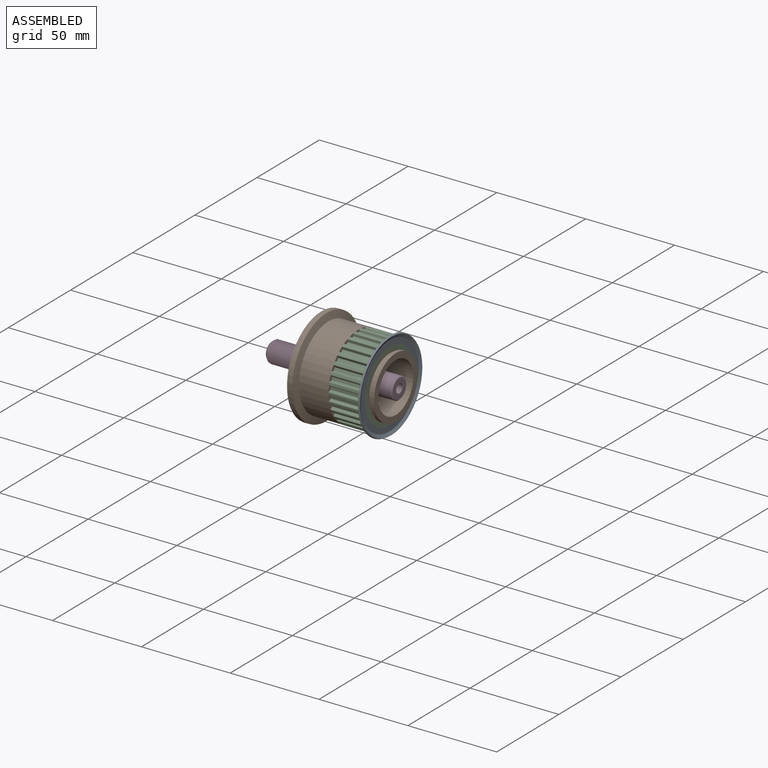
[diagram: assembled view]
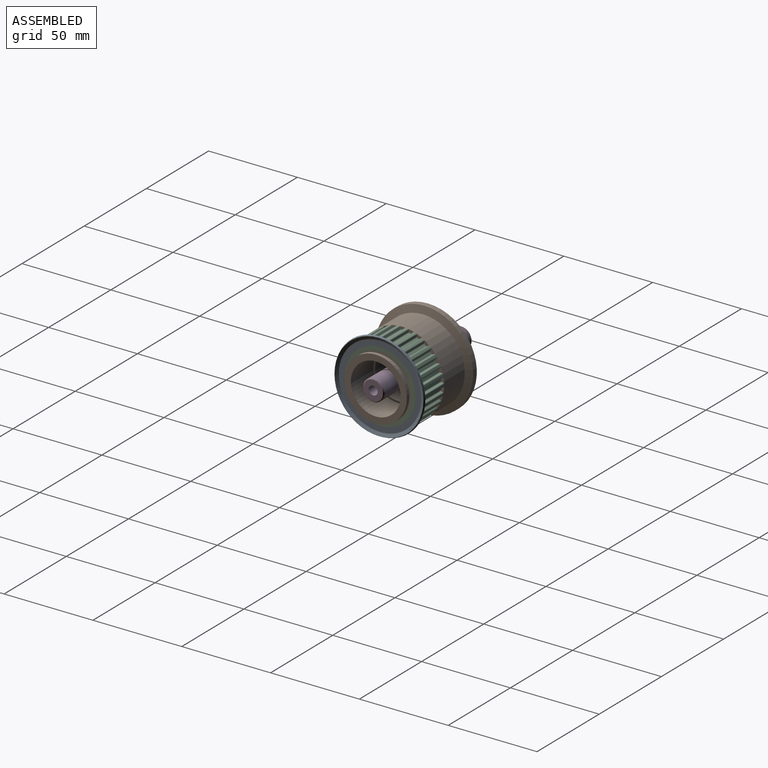
[diagram: assembled view, second angle]
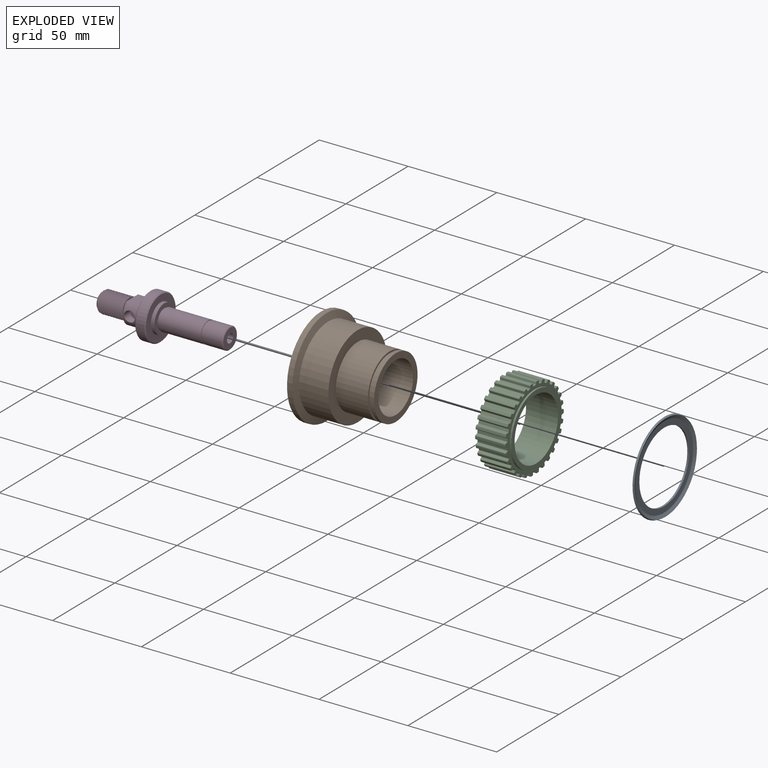
[diagram: exploded view]
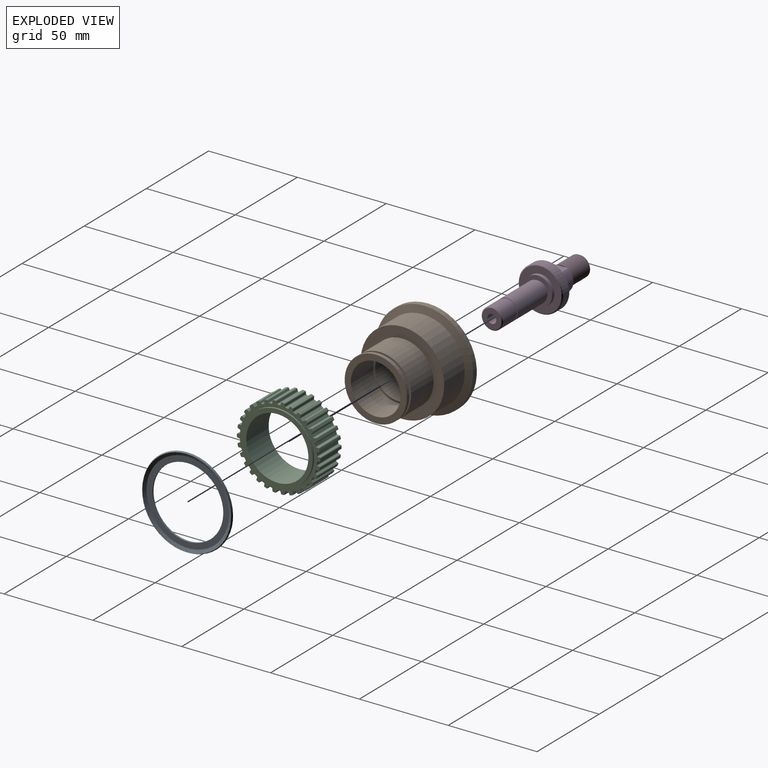
[diagram: exploded view, second angle]
ASSEMBLY  parts=4 mates=3
PART A: 6 faces, bbox 1.9x51x51 mm
  f0: plane 47x47mm, normal (-1,0,0), area 478.3mm2, adj f1,f5
  f1: cylinder r=20mm len=40mm, axis (-1,0,0), area 125.7mm2, adj f0,f2
  f2: plane 46.53x46.53mm, normal (1,0,0), area 443.6mm2, adj f1,f3
  f3: cone r=23.26mm half-angle=63.4deg, axis (1,0,0), area 303.6mm2, adj f2,f4
  f4: cone r=25.05mm half-angle=26.6deg, axis (-1,0,0), area 158.8mm2, adj f3,f5
  f5: cone r=25.5mm half-angle=63.4deg, axis (1,0,0), area 344.2mm2, adj f0,f4
PART B: 16 faces, bbox 42x55x55 mm
  f0: plane 47x47mm, normal (1,0,0), area 772.8mm2, adj f1,f15
  f1: cylinder r=23.5mm len=47mm, axis (-1,0,0), area 2436.3mm2, adj f0,f2
  f2: cone r=27.5mm half-angle=76deg, axis (-1,0,0), area 660.6mm2, adj f1,f3
  f3: cylinder r=27.5mm len=55mm, axis (-1,0,0), area 518.4mm2, adj f2,f4
  f4: plane 55x55mm, normal (-1,0,0), area 1760.1mm2, adj f3,f5
  f5: cylinder r=14mm len=28mm, axis (-1,0,0), area 1319.5mm2, adj f4,f6
  f6: plane 28x28mm, normal (-1,0,0), area 84.8mm2, adj f5,f7
  f7: cylinder r=13mm len=26mm, axis (-1,0,0), area 735.1mm2, adj f6,f8
  f8: plane 28x28mm, normal (1,0,0), area 84.8mm2, adj f7,f9
  f9: cylinder r=14mm len=28mm, axis (-1,0,0), area 1583.4mm2, adj f8,f10
  f10: plane 35x35mm, normal (1,0,0), area 346.4mm2, adj f9,f11
  f11: cylinder r=17.5mm len=35mm, axis (-1,0,0), area 219.9mm2, adj f10,f12
  f12: plane 35x35mm, normal (-1,0,0), area 112mm2, adj f11,f13
  f13: cylinder r=16.45mm len=32.9mm, axis (-1,0,0), area 155mm2, adj f12,f14
  f14: plane 35x35mm, normal (1,0,0), area 112mm2, adj f13,f15
  f15: cylinder r=17.5mm len=35mm, axis (-1,0,0), area 1979.2mm2, adj f0,f14
PART C: 245 faces, bbox 18x47x46.9 mm
  f0: cylinder r=21.75mm len=17mm, axis (-1,0,0), area 20.6mm2, adj f179,f180,f242,f244
  f1: plane 17x0.98mm, normal (0,-0.05,-1), area 16.6mm2, adj f180,f193,f242,f244
  f2: cylinder r=23.5mm len=17mm, axis (-1,0,0), area 19.8mm2, adj f193,f194,f242,f244
  f3: plane 17x0.91mm, normal (0,0.36,0.93), area 16.6mm2, adj f121,f194,f242,f244
  f4: cylinder r=21.75mm len=17mm, axis (-1,0,0), area 20.6mm2, adj f121,f122,f242,f244
  f5: plane 17x0.97mm, normal (0,0.16,-0.99), area 16.6mm2, adj f122,f196,f242,f244
  f6: cylinder r=23.5mm len=17mm, axis (-1,0,0), area 19.8mm2, adj f195,f196,f242,f244
  f7: plane 17x0.97mm, normal (0,0.16,0.99), area 16.6mm2, adj f123,f195,f242,f244
  f8: cylinder r=21.75mm len=17mm, axis (-1,0,0), area 20.6mm2, adj f123,f124,f242,f244
  f9: plane 17x0.91mm, normal (0,0.36,-0.93), area 16.6mm2, adj f124,f197,f242,f244
  f10: cylinder r=23.5mm len=17mm, axis (-1,0,0), area 19.8mm2, adj f197,f198,f242,f244
  f11: plane 17x0.98mm, normal (0,-0.05,1), area 16.6mm2, adj f125,f198,f242,f244
  f12: cylinder r=21.75mm len=17mm, axis (-1,0,0), area 20.6mm2, adj f125,f126,f242,f244
  f13: plane 17x0.82mm, normal (0,0.54,-0.84), area 16.6mm2, adj f126,f199,f242,f244
  f14: cylinder r=23.5mm len=17mm, axis (-1,0,0), area 19.8mm2, adj f199,f200,f242,f244
  f15: plane 17x0.94mm, normal (0,-0.26,0.97), area 16.6mm2, adj f127,f200,f242,f244
  f16: cylinder r=21.75mm len=17mm, axis (-1,0,0), area 20.6mm2, adj f127,f128,f242,f244
  f17: plane 17x0.69mm, normal (0,0.71,-0.71), area 16.6mm2, adj f128,f201,f242,f244
  f18: cylinder r=23.5mm len=17mm, axis (-1,0,0), area 19.8mm2, adj f201,f202,f242,f244
  f19: plane 17x0.87mm, normal (0,-0.45,0.89), area 16.6mm2, adj f129,f202,f242,f244
  f20: cylinder r=21.75mm len=17mm, axis (-1,0,0), area 20.6mm2, adj f129,f130,f242,f244
  f21: plane 17x0.82mm, normal (0,0.84,-0.54), area 16.6mm2, adj f130,f203,f242,f244
  f22: cylinder r=23.5mm len=17mm, axis (-1,0,0), area 19.8mm2, adj f203,f204,f242,f244
  f23: plane 17x0.76mm, normal (0,-0.63,0.78), area 16.6mm2, adj f131,f204,f242,f244
  f24: cylinder r=21.75mm len=17mm, axis (-1,0,0), area 20.6mm2, adj f131,f132,f242,f244
  f25: plane 17x0.91mm, normal (0,0.93,-0.36), area 16.6mm2, adj f132,f205,f242,f244
  f26: cylinder r=23.5mm len=17mm, axis (-1,0,0), area 19.8mm2, adj f205,f206,f242,f244
  f27: plane 17x0.76mm, normal (0,-0.78,0.63), area 16.6mm2, adj f133,f206,f242,f244
  f28: cylinder r=21.75mm len=17mm, axis (-1,0,0), area 20.6mm2, adj f133,f134,f242,f244
  f29: plane 17x0.97mm, normal (0,0.99,-0.16), area 16.6mm2, adj f134,f207,f242,f244
  f30: cylinder r=23.5mm len=17mm, axis (-1,0,0), area 19.8mm2, adj f207,f208,f242,f244
  f31: plane 17x0.87mm, normal (0,-0.89,0.45), area 16.6mm2, adj f135,f208,f242,f244
  f32: cylinder r=21.75mm len=17mm, axis (-1,0,0), area 20.6mm2, adj f135,f136,f242,f244
  f33: plane 17x0.98mm, normal (0,1,0.05), area 16.6mm2, adj f136,f210,f242,f244
  f34: cylinder r=23.5mm len=17mm, axis (-1,0,0), area 19.8mm2, adj f209,f210,f242,f244
  f35: plane 17x0.94mm, normal (0,-0.97,0.26), area 16.6mm2, adj f137,f209,f242,f244
  f36: cylinder r=21.75mm len=17mm, axis (-1,0,0), area 20.6mm2, adj f137,f138,f242,f244
  f37: plane 17x0.94mm, normal (0,0.97,0.26), area 16.6mm2, adj f138,f211,f242,f244
  f38: cylinder r=23.5mm len=17mm, axis (-1,0,0), area 19.8mm2, adj f211,f212,f242,f244
  f39: plane 17x0.98mm, normal (0,-1,0.05), area 16.6mm2, adj f139,f212,f242,f244
  f40: cylinder r=21.75mm len=17mm, axis (-1,0,0), area 20.6mm2, adj f139,f140,f242,f244
  f41: plane 17x0.87mm, normal (0,0.89,0.45), area 16.6mm2, adj f140,f213,f242,f244
  f42: cylinder r=23.5mm len=17mm, axis (-1,0,0), area 19.8mm2, adj f213,f214,f242,f244
  f43: plane 17x0.97mm, normal (0,-0.99,-0.16), area 16.6mm2, adj f141,f214,f242,f244
  f44: cylinder r=21.75mm len=17mm, axis (-1,0,0), area 20.6mm2, adj f141,f142,f242,f244
  f45: plane 17x0.76mm, normal (0,0.78,0.63), area 16.6mm2, adj f142,f215,f242,f244
  f46: cylinder r=23.5mm len=17mm, axis (-1,0,0), area 19.8mm2, adj f215,f216,f242,f244
  f47: plane 17x0.91mm, normal (0,-0.93,-0.36), area 16.6mm2, adj f143,f216,f242,f244
  f48: cylinder r=21.75mm len=17mm, axis (-1,0,0), area 20.6mm2, adj f143,f144,f242,f244
  f49: plane 17x0.76mm, normal (0,0.63,0.78), area 16.6mm2, adj f144,f217,f242,f244
  f50: cylinder r=23.5mm len=17mm, axis (-1,0,0), area 19.8mm2, adj f217,f218,f242,f244
  f51: plane 17x0.82mm, normal (0,-0.84,-0.54), area 16.6mm2, adj f145,f218,f242,f244
  f52: cylinder r=21.75mm len=17mm, axis (-1,0,0), area 20.6mm2, adj f145,f146,f242,f244
  f53: plane 17x0.87mm, normal (0,0.45,0.89), area 16.6mm2, adj f146,f219,f242,f244
  f54: cylinder r=23.5mm len=17mm, axis (-1,0,0), area 19.8mm2, adj f219,f220,f242,f244
  f55: plane 17x0.69mm, normal (0,-0.71,-0.71), area 16.6mm2, adj f147,f220,f242,f244
  f56: cylinder r=21.75mm len=17mm, axis (-1,0,0), area 20.6mm2, adj f147,f148,f242,f244
  f57: plane 17x0.94mm, normal (0,0.26,0.97), area 16.6mm2, adj f148,f221,f242,f244
  f58: cylinder r=23.5mm len=17mm, axis (-1,0,0), area 19.8mm2, adj f221,f222,f242,f244
  f59: plane 17x0.82mm, normal (0,-0.54,-0.84), area 16.6mm2, adj f149,f222,f242,f244
  f60: cylinder r=21.75mm len=17mm, axis (-1,0,0), area 20.6mm2, adj f149,f150,f242,f244
  f61: plane 17x0.98mm, normal (0,0.05,1), area 16.6mm2, adj f150,f223,f242,f244
  f62: cylinder r=23.5mm len=17mm, axis (-1,0,0), area 19.8mm2, adj f223,f224,f242,f244
  f63: plane 17x0.91mm, normal (0,-0.36,-0.93), area 16.6mm2, adj f151,f224,f242,f244
  f64: cylinder r=21.75mm len=17mm, axis (-1,0,0), area 20.6mm2, adj f151,f152,f242,f244
  f65: plane 17x0.97mm, normal (0,-0.16,0.99), area 16.6mm2, adj f152,f225,f242,f244
  f66: cylinder r=23.5mm len=17mm, axis (-1,0,0), area 19.8mm2, adj f225,f226,f242,f244
  f67: plane 17x0.97mm, normal (0,-0.16,-0.99), area 16.6mm2, adj f153,f226,f242,f244
  f68: cylinder r=21.75mm len=17mm, axis (-1,0,0), area 20.6mm2, adj f153,f154,f242,f244
  f69: plane 17x0.91mm, normal (0,-0.36,0.93), area 16.6mm2, adj f154,f227,f242,f244
  f70: cylinder r=23.5mm len=17mm, axis (-1,0,0), area 19.8mm2, adj f227,f228,f242,f244
  f71: plane 17x0.98mm, normal (0,0.05,-1), area 16.6mm2, adj f155,f228,f242,f244
  f72: cylinder r=21.75mm len=17mm, axis (-1,0,0), area 20.6mm2, adj f155,f156,f242,f244
  f73: plane 17x0.82mm, normal (0,-0.54,0.84), area 16.6mm2, adj f156,f229,f242,f244
  f74: cylinder r=23.5mm len=17mm, axis (-1,0,0), area 19.8mm2, adj f229,f230,f242,f244
  f75: plane 17x0.94mm, normal (0,0.26,-0.97), area 16.6mm2, adj f157,f230,f242,f244
  f76: cylinder r=21.75mm len=17mm, axis (-1,0,0), area 20.6mm2, adj f157,f158,f242,f244
  f77: plane 17x0.69mm, normal (0,-0.71,0.71), area 16.6mm2, adj f158,f231,f242,f244
  f78: cylinder r=23.5mm len=17mm, axis (-1,0,0), area 19.8mm2, adj f231,f232,f242,f244
  f79: plane 17x0.87mm, normal (0,0.45,-0.89), area 16.6mm2, adj f159,f232,f242,f244
  f80: cylinder r=21.75mm len=17mm, axis (-1,0,0), area 20.6mm2, adj f159,f160,f242,f244
  f81: plane 17x0.82mm, normal (0,-0.84,0.54), area 16.6mm2, adj f160,f233,f242,f244
  f82: cylinder r=23.5mm len=17mm, axis (-1,0,0), area 19.8mm2, adj f233,f234,f242,f244
  f83: plane 17x0.76mm, normal (0,0.63,-0.78), area 16.6mm2, adj f161,f234,f242,f244
  f84: cylinder r=21.75mm len=17mm, axis (-1,0,0), area 20.6mm2, adj f161,f162,f242,f244
  f85: plane 17x0.91mm, normal (0,-0.93,0.36), area 16.6mm2, adj f162,f235,f242,f244
  f86: cylinder r=23.5mm len=17mm, axis (-1,0,0), area 19.8mm2, adj f235,f236,f242,f244
  f87: plane 17x0.76mm, normal (0,0.78,-0.63), area 16.6mm2, adj f163,f236,f242,f244
  f88: cylinder r=21.75mm len=17mm, axis (-1,0,0), area 20.6mm2, adj f163,f164,f242,f244
  f89: plane 17x0.97mm, normal (0,-0.99,0.16), area 16.6mm2, adj f164,f237,f242,f244
  f90: cylinder r=23.5mm len=17mm, axis (-1,0,0), area 19.8mm2, adj f237,f238,f242,f244
  f91: plane 17x0.87mm, normal (0,0.89,-0.45), area 16.6mm2, adj f165,f238,f242,f244
  f92: cylinder r=21.75mm len=17mm, axis (-1,0,0), area 20.6mm2, adj f165,f166,f242,f244
  f93: plane 17x0.98mm, normal (0,-1,-0.05), area 16.6mm2, adj f166,f239,f242,f244
  f94: cylinder r=23.5mm len=17mm, axis (-1,0,0), area 19.8mm2, adj f239,f240,f242,f244
  f95: plane 17x0.94mm, normal (0,0.97,-0.26), area 16.6mm2, adj f167,f240,f242,f244
  f96: cylinder r=21.75mm len=17mm, axis (-1,0,0), area 20.6mm2, adj f167,f168,f242,f244
  f97: plane 17x0.94mm, normal (0,-0.97,-0.26), area 16.6mm2, adj f168,f181,f242,f244
  f98: cylinder r=23.5mm len=17mm, axis (-1,0,0), area 19.8mm2, adj f181,f182,f242,f244
  f99: plane 17x0.98mm, normal (0,1,-0.05), area 16.6mm2, adj f169,f182,f242,f244
  f100: cylinder r=21.75mm len=17mm, axis (-1,0,0), area 20.6mm2, adj f169,f170,f242,f244
  f101: plane 17x0.87mm, normal (0,-0.89,-0.45), area 16.6mm2, adj f170,f183,f242,f244
  f102: cylinder r=23.5mm len=17mm, axis (-1,0,0), area 19.8mm2, adj f183,f184,f242,f244
  f103: plane 17x0.97mm, normal (0,0.99,0.16), area 16.6mm2, adj f171,f184,f242,f244
  f104: cylinder r=21.75mm len=17mm, axis (-1,0,0), area 20.6mm2, adj f171,f172,f242,f244
  f105: plane 17x0.76mm, normal (0,-0.78,-0.63), area 16.6mm2, adj f172,f185,f242,f244
  f106: cylinder r=23.5mm len=17mm, axis (-1,0,0), area 19.8mm2, adj f185,f186,f242,f244
  f107: plane 17x0.91mm, normal (0,0.93,0.36), area 16.6mm2, adj f173,f186,f242,f244
  f108: cylinder r=21.75mm len=17mm, axis (-1,0,0), area 20.6mm2, adj f173,f174,f242,f244
  f109: plane 17x0.76mm, normal (0,-0.63,-0.78), area 16.6mm2, adj f174,f187,f242,f244
  f110: cylinder r=23.5mm len=17mm, axis (-1,0,0), area 19.8mm2, adj f187,f188,f242,f244
  f111: plane 17x0.82mm, normal (0,0.84,0.54), area 16.6mm2, adj f175,f188,f242,f244
  f112: cylinder r=21.75mm len=17mm, axis (-1,0,0), area 20.6mm2, adj f175,f176,f242,f244
  f113: plane 17x0.87mm, normal (0,-0.45,-0.89), area 16.6mm2, adj f176,f189,f242,f244
  f114: cylinder r=23.5mm len=17mm, axis (-1,0,0), area 19.8mm2, adj f189,f190,f242,f244
  f115: plane 17x0.69mm, normal (0,0.71,0.71), area 16.6mm2, adj f177,f190,f242,f244
  f116: cylinder r=21.75mm len=17mm, axis (-1,0,0), area 20.6mm2, adj f177,f178,f242,f244
  f117: plane 17x0.94mm, normal (0,-0.26,-0.97), area 16.6mm2, adj f178,f191,f242,f244
  f118: cylinder r=23.5mm len=17mm, axis (-1,0,0), area 19.8mm2, adj f191,f192,f242,f244
  f119: plane 17x0.82mm, normal (0,0.54,0.84), area 16.6mm2, adj f179,f192,f242,f244
  f120: plane 40x40mm, normal (1,0,0), area 294.5mm2, adj f241,f243
  f121: cylinder r=0.5mm len=17mm, axis (-1,0,0), area 11.4mm2, adj f3,f4,f242,f244
  f122: cylinder r=0.5mm len=17mm, axis (-1,0,0), area 11.4mm2, adj f4,f5,f242,f244
  f123: cylinder r=0.5mm len=17mm, axis (-1,0,0), area 11.4mm2, adj f7,f8,f242,f244
  f124: cylinder r=0.5mm len=17mm, axis (-1,0,0), area 11.4mm2, adj f8,f9,f242,f244
  f125: cylinder r=0.5mm len=17mm, axis (-1,0,0), area 11.4mm2, adj f11,f12,f242,f244
  f126: cylinder r=0.5mm len=17mm, axis (-1,0,0), area 11.4mm2, adj f12,f13,f242,f244
  f127: cylinder r=0.5mm len=17mm, axis (-1,0,0), area 11.4mm2, adj f15,f16,f242,f244
  f128: cylinder r=0.5mm len=17mm, axis (-1,0,0), area 11.4mm2, adj f16,f17,f242,f244
  f129: cylinder r=0.5mm len=17mm, axis (-1,0,0), area 11.4mm2, adj f19,f20,f242,f244
  f130: cylinder r=0.5mm len=17mm, axis (-1,0,0), area 11.4mm2, adj f20,f21,f242,f244
  f131: cylinder r=0.5mm len=17mm, axis (-1,0,0), area 11.4mm2, adj f23,f24,f242,f244
  f132: cylinder r=0.5mm len=17mm, axis (-1,0,0), area 11.4mm2, adj f24,f25,f242,f244
  f133: cylinder r=0.5mm len=17mm, axis (-1,0,0), area 11.4mm2, adj f27,f28,f242,f244
  f134: cylinder r=0.5mm len=17mm, axis (-1,0,0), area 11.4mm2, adj f28,f29,f242,f244
  f135: cylinder r=0.5mm len=17mm, axis (-1,0,0), area 11.4mm2, adj f31,f32,f242,f244
  f136: cylinder r=0.5mm len=17mm, axis (-1,0,0), area 11.4mm2, adj f32,f33,f242,f244
  f137: cylinder r=0.5mm len=17mm, axis (-1,0,0), area 11.4mm2, adj f35,f36,f242,f244
  f138: cylinder r=0.5mm len=17mm, axis (-1,0,0), area 11.4mm2, adj f36,f37,f242,f244
  f139: cylinder r=0.5mm len=17mm, axis (-1,0,0), area 11.4mm2, adj f39,f40,f242,f244
  f140: cylinder r=0.5mm len=17mm, axis (-1,0,0), area 11.4mm2, adj f40,f41,f242,f244
  f141: cylinder r=0.5mm len=17mm, axis (-1,0,0), area 11.4mm2, adj f43,f44,f242,f244
  f142: cylinder r=0.5mm len=17mm, axis (-1,0,0), area 11.4mm2, adj f44,f45,f242,f244
  f143: cylinder r=0.5mm len=17mm, axis (-1,0,0), area 11.4mm2, adj f47,f48,f242,f244
  f144: cylinder r=0.5mm len=17mm, axis (-1,0,0), area 11.4mm2, adj f48,f49,f242,f244
  f145: cylinder r=0.5mm len=17mm, axis (-1,0,0), area 11.4mm2, adj f51,f52,f242,f244
  f146: cylinder r=0.5mm len=17mm, axis (-1,0,0), area 11.4mm2, adj f52,f53,f242,f244
  f147: cylinder r=0.5mm len=17mm, axis (-1,0,0), area 11.4mm2, adj f55,f56,f242,f244
  f148: cylinder r=0.5mm len=17mm, axis (-1,0,0), area 11.4mm2, adj f56,f57,f242,f244
  f149: cylinder r=0.5mm len=17mm, axis (-1,0,0), area 11.4mm2, adj f59,f60,f242,f244
  f150: cylinder r=0.5mm len=17mm, axis (-1,0,0), area 11.4mm2, adj f60,f61,f242,f244
  f151: cylinder r=0.5mm len=17mm, axis (-1,0,0), area 11.4mm2, adj f63,f64,f242,f244
  f152: cylinder r=0.5mm len=17mm, axis (-1,0,0), area 11.4mm2, adj f64,f65,f242,f244
  f153: cylinder r=0.5mm len=17mm, axis (-1,0,0), area 11.4mm2, adj f67,f68,f242,f244
  f154: cylinder r=0.5mm len=17mm, axis (-1,0,0), area 11.4mm2, adj f68,f69,f242,f244
  f155: cylinder r=0.5mm len=17mm, axis (-1,0,0), area 11.4mm2, adj f71,f72,f242,f244
  f156: cylinder r=0.5mm len=17mm, axis (-1,0,0), area 11.4mm2, adj f72,f73,f242,f244
  f157: cylinder r=0.5mm len=17mm, axis (-1,0,0), area 11.4mm2, adj f75,f76,f242,f244
  f158: cylinder r=0.5mm len=17mm, axis (-1,0,0), area 11.4mm2, adj f76,f77,f242,f244
  f159: cylinder r=0.5mm len=17mm, axis (-1,0,0), area 11.4mm2, adj f79,f80,f242,f244
  f160: cylinder r=0.5mm len=17mm, axis (-1,0,0), area 11.4mm2, adj f80,f81,f242,f244
  f161: cylinder r=0.5mm len=17mm, axis (-1,0,0), area 11.4mm2, adj f83,f84,f242,f244
  f162: cylinder r=0.5mm len=17mm, axis (-1,0,0), area 11.4mm2, adj f84,f85,f242,f244
  f163: cylinder r=0.5mm len=17mm, axis (-1,0,0), area 11.4mm2, adj f87,f88,f242,f244
  f164: cylinder r=0.5mm len=17mm, axis (-1,0,0), area 11.4mm2, adj f88,f89,f242,f244
  f165: cylinder r=0.5mm len=17mm, axis (-1,0,0), area 11.4mm2, adj f91,f92,f242,f244
  f166: cylinder r=0.5mm len=17mm, axis (-1,0,0), area 11.4mm2, adj f92,f93,f242,f244
  f167: cylinder r=0.5mm len=17mm, axis (-1,0,0), area 11.4mm2, adj f95,f96,f242,f244
  f168: cylinder r=0.5mm len=17mm, axis (-1,0,0), area 11.4mm2, adj f96,f97,f242,f244
  f169: cylinder r=0.5mm len=17mm, axis (-1,0,0), area 11.4mm2, adj f99,f100,f242,f244
  f170: cylinder r=0.5mm len=17mm, axis (-1,0,0), area 11.4mm2, adj f100,f101,f242,f244
  f171: cylinder r=0.5mm len=17mm, axis (-1,0,0), area 11.4mm2, adj f103,f104,f242,f244
  f172: cylinder r=0.5mm len=17mm, axis (-1,0,0), area 11.4mm2, adj f104,f105,f242,f244
  f173: cylinder r=0.5mm len=17mm, axis (-1,0,0), area 11.4mm2, adj f107,f108,f242,f244
  f174: cylinder r=0.5mm len=17mm, axis (-1,0,0), area 11.4mm2, adj f108,f109,f242,f244
  f175: cylinder r=0.5mm len=17mm, axis (-1,0,0), area 11.4mm2, adj f111,f112,f242,f244
  f176: cylinder r=0.5mm len=17mm, axis (-1,0,0), area 11.4mm2, adj f112,f113,f242,f244
  f177: cylinder r=0.5mm len=17mm, axis (-1,0,0), area 11.4mm2, adj f115,f116,f242,f244
  f178: cylinder r=0.5mm len=17mm, axis (-1,0,0), area 11.4mm2, adj f116,f117,f242,f244
  f179: cylinder r=0.5mm len=17mm, axis (-1,0,0), area 11.4mm2, adj f0,f119,f242,f244
  f180: cylinder r=0.5mm len=17mm, axis (-1,0,0), area 11.4mm2, adj f0,f1,f242,f244
  f181: cylinder r=0.5mm len=17mm, axis (-1,0,0), area 11.8mm2, adj f97,f98,f242,f244
  f182: cylinder r=0.5mm len=17mm, axis (-1,0,0), area 11.8mm2, adj f98,f99,f242,f244
  f183: cylinder r=0.5mm len=17mm, axis (-1,0,0), area 11.8mm2, adj f101,f102,f242,f244
  f184: cylinder r=0.5mm len=17mm, axis (-1,0,0), area 11.8mm2, adj f102,f103,f242,f244
  f185: cylinder r=0.5mm len=17mm, axis (-1,0,0), area 11.8mm2, adj f105,f106,f242,f244
  f186: cylinder r=0.5mm len=17mm, axis (-1,0,0), area 11.8mm2, adj f106,f107,f242,f244
  f187: cylinder r=0.5mm len=17mm, axis (-1,0,0), area 11.8mm2, adj f109,f110,f242,f244
  f188: cylinder r=0.5mm len=17mm, axis (-1,0,0), area 11.8mm2, adj f110,f111,f242,f244
  f189: cylinder r=0.5mm len=17mm, axis (-1,0,0), area 11.8mm2, adj f113,f114,f242,f244
  f190: cylinder r=0.5mm len=17mm, axis (-1,0,0), area 11.8mm2, adj f114,f115,f242,f244
  f191: cylinder r=0.5mm len=17mm, axis (-1,0,0), area 11.8mm2, adj f117,f118,f242,f244
  f192: cylinder r=0.5mm len=17mm, axis (-1,0,0), area 11.8mm2, adj f118,f119,f242,f244
  f193: cylinder r=0.5mm len=17mm, axis (-1,0,0), area 11.8mm2, adj f1,f2,f242,f244
  f194: cylinder r=0.5mm len=17mm, axis (-1,0,0), area 11.8mm2, adj f2,f3,f242,f244
  f195: cylinder r=0.5mm len=17mm, axis (-1,0,0), area 11.8mm2, adj f6,f7,f242,f244
  f196: cylinder r=0.5mm len=17mm, axis (-1,0,0), area 11.8mm2, adj f5,f6,f242,f244
  f197: cylinder r=0.5mm len=17mm, axis (-1,0,0), area 11.8mm2, adj f9,f10,f242,f244
  f198: cylinder r=0.5mm len=17mm, axis (-1,0,0), area 11.8mm2, adj f10,f11,f242,f244
  f199: cylinder r=0.5mm len=17mm, axis (-1,0,0), area 11.8mm2, adj f13,f14,f242,f244
  f200: cylinder r=0.5mm len=17mm, axis (-1,0,0), area 11.8mm2, adj f14,f15,f242,f244
  f201: cylinder r=0.5mm len=17mm, axis (-1,0,0), area 11.8mm2, adj f17,f18,f242,f244
  f202: cylinder r=0.5mm len=17mm, axis (-1,0,0), area 11.8mm2, adj f18,f19,f242,f244
  f203: cylinder r=0.5mm len=17mm, axis (-1,0,0), area 11.8mm2, adj f21,f22,f242,f244
  f204: cylinder r=0.5mm len=17mm, axis (-1,0,0), area 11.8mm2, adj f22,f23,f242,f244
  f205: cylinder r=0.5mm len=17mm, axis (-1,0,0), area 11.8mm2, adj f25,f26,f242,f244
  f206: cylinder r=0.5mm len=17mm, axis (-1,0,0), area 11.8mm2, adj f26,f27,f242,f244
  f207: cylinder r=0.5mm len=17mm, axis (-1,0,0), area 11.8mm2, adj f29,f30,f242,f244
  f208: cylinder r=0.5mm len=17mm, axis (-1,0,0), area 11.8mm2, adj f30,f31,f242,f244
  f209: cylinder r=0.5mm len=17mm, axis (-1,0,0), area 11.8mm2, adj f34,f35,f242,f244
  f210: cylinder r=0.5mm len=17mm, axis (-1,0,0), area 11.8mm2, adj f33,f34,f242,f244
  f211: cylinder r=0.5mm len=17mm, axis (-1,0,0), area 11.8mm2, adj f37,f38,f242,f244
  f212: cylinder r=0.5mm len=17mm, axis (-1,0,0), area 11.8mm2, adj f38,f39,f242,f244
  f213: cylinder r=0.5mm len=17mm, axis (-1,0,0), area 11.8mm2, adj f41,f42,f242,f244
  f214: cylinder r=0.5mm len=17mm, axis (-1,0,0), area 11.8mm2, adj f42,f43,f242,f244
  f215: cylinder r=0.5mm len=17mm, axis (-1,0,0), area 11.8mm2, adj f45,f46,f242,f244
  f216: cylinder r=0.5mm len=17mm, axis (-1,0,0), area 11.8mm2, adj f46,f47,f242,f244
  f217: cylinder r=0.5mm len=17mm, axis (-1,0,0), area 11.8mm2, adj f49,f50,f242,f244
  f218: cylinder r=0.5mm len=17mm, axis (-1,0,0), area 11.8mm2, adj f50,f51,f242,f244
  f219: cylinder r=0.5mm len=17mm, axis (-1,0,0), area 11.8mm2, adj f53,f54,f242,f244
  f220: cylinder r=0.5mm len=17mm, axis (-1,0,0), area 11.8mm2, adj f54,f55,f242,f244
  f221: cylinder r=0.5mm len=17mm, axis (-1,0,0), area 11.8mm2, adj f57,f58,f242,f244
  f222: cylinder r=0.5mm len=17mm, axis (-1,0,0), area 11.8mm2, adj f58,f59,f242,f244
  f223: cylinder r=0.5mm len=17mm, axis (-1,0,0), area 11.8mm2, adj f61,f62,f242,f244
  f224: cylinder r=0.5mm len=17mm, axis (-1,0,0), area 11.8mm2, adj f62,f63,f242,f244
  f225: cylinder r=0.5mm len=17mm, axis (-1,0,0), area 11.8mm2, adj f65,f66,f242,f244
  f226: cylinder r=0.5mm len=17mm, axis (-1,0,0), area 11.8mm2, adj f66,f67,f242,f244
  f227: cylinder r=0.5mm len=17mm, axis (-1,0,0), area 11.8mm2, adj f69,f70,f242,f244
  f228: cylinder r=0.5mm len=17mm, axis (-1,0,0), area 11.8mm2, adj f70,f71,f242,f244
  f229: cylinder r=0.5mm len=17mm, axis (-1,0,0), area 11.8mm2, adj f73,f74,f242,f244
  f230: cylinder r=0.5mm len=17mm, axis (-1,0,0), area 11.8mm2, adj f74,f75,f242,f244
  f231: cylinder r=0.5mm len=17mm, axis (-1,0,0), area 11.8mm2, adj f77,f78,f242,f244
  f232: cylinder r=0.5mm len=17mm, axis (-1,0,0), area 11.8mm2, adj f78,f79,f242,f244
  f233: cylinder r=0.5mm len=17mm, axis (-1,0,0), area 11.8mm2, adj f81,f82,f242,f244
  f234: cylinder r=0.5mm len=17mm, axis (-1,0,0), area 11.8mm2, adj f82,f83,f242,f244
  f235: cylinder r=0.5mm len=17mm, axis (-1,0,0), area 11.8mm2, adj f85,f86,f242,f244
  f236: cylinder r=0.5mm len=17mm, axis (-1,0,0), area 11.8mm2, adj f86,f87,f242,f244
  f237: cylinder r=0.5mm len=17mm, axis (-1,0,0), area 11.8mm2, adj f89,f90,f242,f244
  f238: cylinder r=0.5mm len=17mm, axis (-1,0,0), area 11.8mm2, adj f90,f91,f242,f244
  f239: cylinder r=0.5mm len=17mm, axis (-1,0,0), area 11.8mm2, adj f93,f94,f242,f244
  f240: cylinder r=0.5mm len=17mm, axis (-1,0,0), area 11.8mm2, adj f94,f95,f242,f244
  f241: cylinder r=17.5mm len=35mm, axis (-1,0,0), area 1979.2mm2, adj f120,f242
  f242: plane 47x46.85mm, normal (-1,0,0), area 643.4mm2, adj f0,f1,f2,f3,f4,f5,f6,f7
  f243: cylinder r=20mm len=40mm, axis (1,0,0), area 125.7mm2, adj f120,f244
  f244: plane 47x46.85mm, normal (1,0,0), area 348.9mm2, adj f0,f1,f2,f3,f4,f5,f6,f7
PART D: 34 faces, bbox 73.6x26x26 mm
  f0: cylinder r=7.5mm len=15mm, axis (1,0,0), area 268.6mm2, adj f2,f3,f19,f20,f21,f22,f32
  f1: cylinder r=6mm len=14.1mm, axis (1,0,0), area 50mm2, adj f5,f28,f30,f31
  f2: plane 15x12mm, normal (-1,0,0), area 91.8mm2, adj f0,f4,f20,f22
  f3: plane 24x24mm, normal (-1,0,0), area 275.7mm2, adj f0,f25
  f4: cylinder r=4.6mm len=9.2mm, axis (1,0,0), area 40.5mm2, adj f2,f5
  f5: plane 11.9x11.89mm, normal (1,0,0), area 26.7mm2, adj f1,f4,f30,f31
  f6: plane 9x9mm, normal (-1,0,0), area 63.6mm2, adj f29
  f7: plane 11x11mm, normal (1,0,0), area 75.4mm2, adj f24,f27
  f8: cylinder r=6mm len=12mm, axis (1,0,0), area 395.8mm2, adj f9,f27
  f9: plane 12x12mm, normal (-1,0,0), area 11mm2, adj f8,f10
  f10: cylinder r=5.7mm len=11.4mm, axis (1,0,0), area 43mm2, adj f9,f11
  f11: plane 12x12mm, normal (1,0,0), area 11mm2, adj f10,f12
  f12: cylinder r=6mm len=23.8mm, axis (1,0,0), area 897.2mm2, adj f11,f13
  f13: plane 12x12mm, normal (-1,0,0), area 18.1mm2, adj f12,f14
  f14: cylinder r=5.5mm len=11mm, axis (1,0,0), area 34.6mm2, adj f13,f15
  f15: plane 16x16mm, normal (1,0,0), area 106mm2, adj f14,f16
  f16: cylinder r=8mm len=16mm, axis (1,0,0), area 100.5mm2, adj f15,f17
  f17: plane 24x24mm, normal (1,0,0), area 251.3mm2, adj f16,f26
  f18: cylinder r=12.5mm len=25mm, axis (1,0,0), area 392.7mm2, adj f25,f26
  f19: plane 9x1.5mm, normal (-1,0,0), area 9.2mm2, adj f0,f20
  f20: plane 9x9mm, normal (0,0,-1), area 81mm2, adj f0,f2,f19
  f21: plane 9x1.5mm, normal (-1,0,0), area 9.2mm2, adj f0,f22
  f22: plane 9x9mm, normal (0,0,1), area 81mm2, adj f0,f2,f21
  f23: cone r=0mm half-angle=59deg, axis (1,0,0), area 22.9mm2, adj f24
  f24: cylinder r=2.5mm len=20mm, axis (1,0,0), area 314.2mm2, adj f7,f23
  f25: cone r=12.5mm half-angle=45deg, axis (1,0,0), area 54.4mm2, adj f3,f18
  f26: cone r=12mm half-angle=45deg, axis (-1,0,0), area 54.4mm2, adj f17,f18
  f27: cone r=5.5mm half-angle=45deg, axis (-1,0,0), area 25.5mm2, adj f7,f8
  f28: cone r=6mm half-angle=45deg, axis (1,0,0), area 4.8mm2, adj f1,f29,f30,f31
  f29: cone r=6mm half-angle=45deg, axis (1,0,0), area 37.1mm2, adj f6,f28,f30,f31
  f30: bspline ~16.95x13.86mm, area 461.8mm2, adj f1,f5,f28,f29,f31
  f31: bspline ~16.45x13.86mm, area 465.5mm2, adj f1,f5,f28,f29,f30
  f32: cylinder r=3mm len=6mm, axis (0,1,0), area 82.4mm2, adj f0,f33
  f33: plane 6x6mm, normal (0,-1,0), area 28.3mm2, adj f32
PLACE A t=(-34.86,-52.08,-22.16)mm
PLACE B t=(-72.36,-52.08,-22.16)mm
PLACE C t=(-51.86,-52.08,-22.16)mm
PLACE D t=(-100.36,-52.08,-22.16)mm
MATE fastened A.f1 <-> C.f243  axis (1,0,0) through (-33.86,-52.08,-22.16)mm
MATE revolute B.f1 <-> D.f0  axis (-1,0,0) through (-57.36,-52.08,-22.16)mm
MATE fastened C.f241 <-> B.f1  axis (-1,0,0) through (-51.86,-52.08,-22.16)mm
